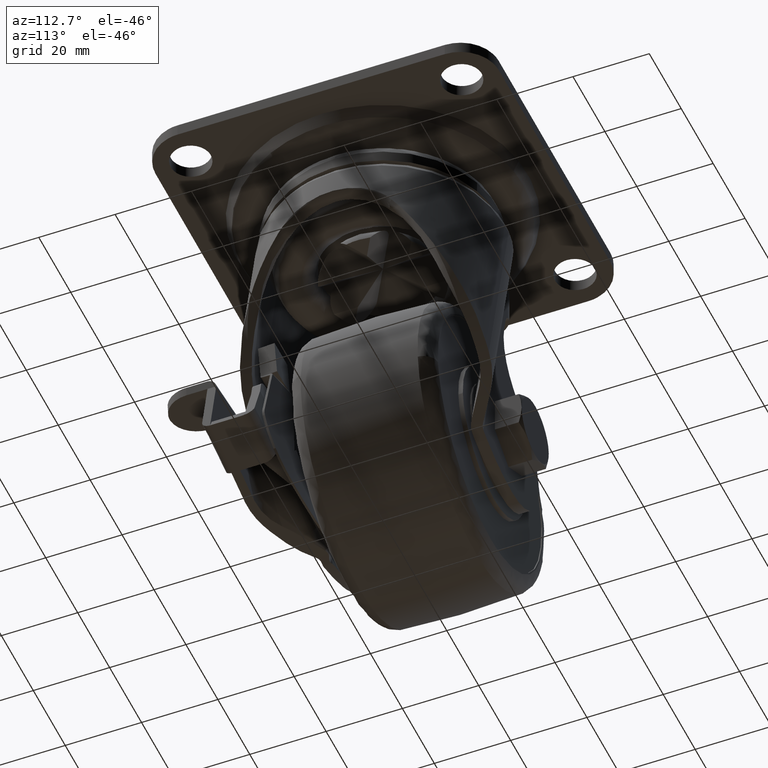
[diagram: clean part render]
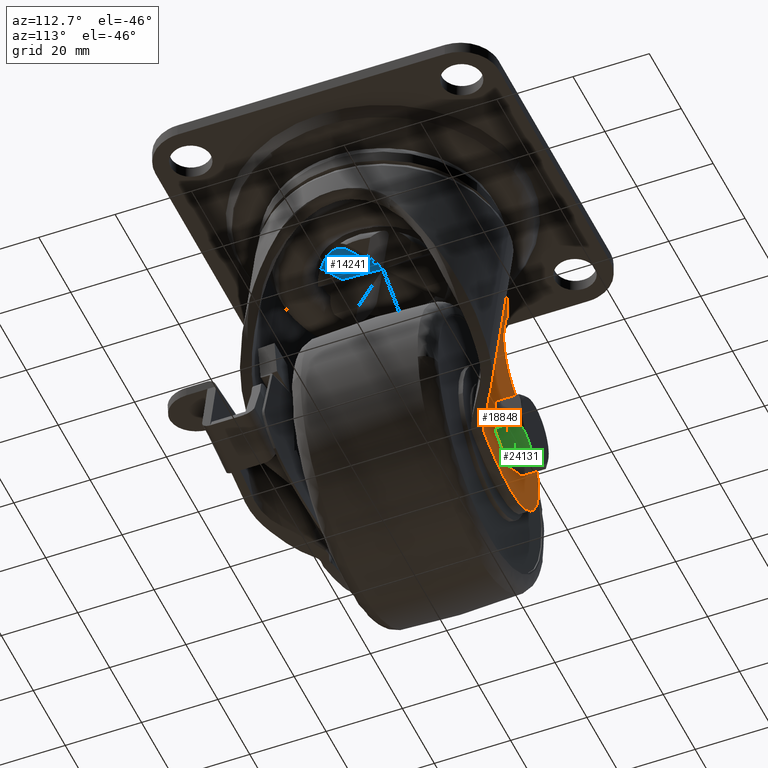
[diagram: same view with three faces highlighted in distinct colors, each labeled with its STEP entity id]
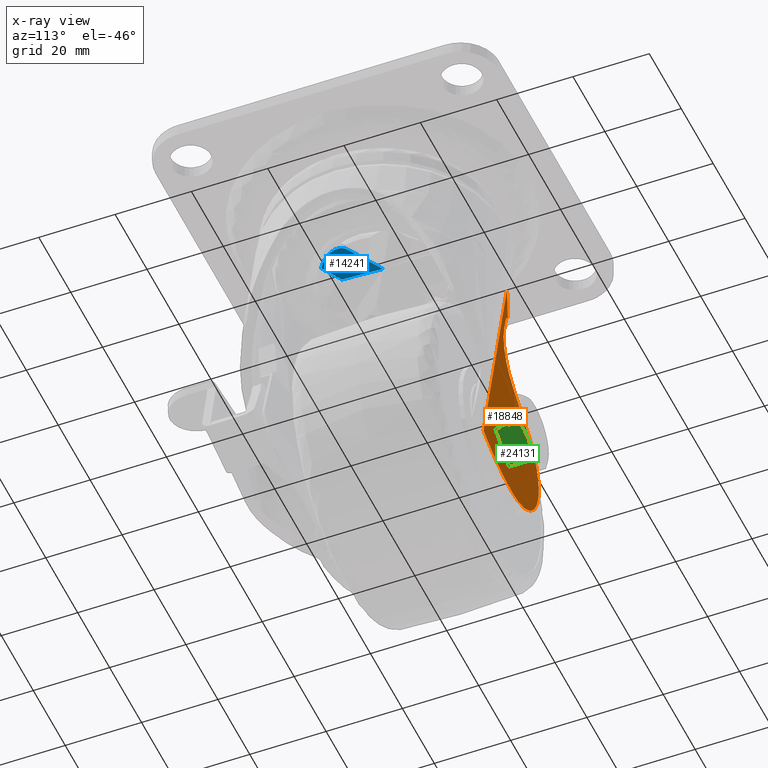
[diagram: x-ray of the same camera — body ghosted, the three highlighted faces saturated]
A machine part, auxiliary view with three faces highlighted in distinct colors.
The next image is the same camera in x-ray (body ghosted, the three faces saturated) — at least one of them is partly hidden behind the body in this view.
Their STEP definitions:

[orange] entity #18848 — the highlighted face is a freeform B-spline surface patch.
#15724=CARTESIAN_POINT('',(-26.994555841990479,23.699999999999999,-68.893080069755172));
#15725=VERTEX_POINT('',#15724);
#15731=CARTESIAN_POINT('',(-22.0,23.699999999999999,-63.490000000000002));
#15732=VERTEX_POINT('',#15731);
#15733=CARTESIAN_POINT('',(-26.994555841990476,23.699999999999999,-68.893080069755186));
#15734=CARTESIAN_POINT('',(-27.009999999999998,23.700000000000003,-68.696843436188132));
#15735=CARTESIAN_POINT('',(-27.010000000000002,23.699999999999999,-68.500000000000000));
#15736=CARTESIAN_POINT('',(-27.009999999999998,23.700000000000003,-63.489999999999988));
#15737=CARTESIAN_POINT('',(-22.0,23.699999999999999,-63.490000000000002));
#15745=(BOUNDED_CURVE()B_SPLINE_CURVE(2,(#15733,#15734,#15735,#15736,#15737),.UNSPECIFIED.,.F.,.U.)B_SPLINE_CURVE_WITH_KNOTS((3,2,3),(0.736331300627321,0.750000000000000,1.0),.UNSPECIFIED.)CURVE()GEOMETRIC_REPRESENTATION_ITEM()RATIONAL_B_SPLINE_CURVE((0.969723356160449,0.983986122574970,1.0,0.707106781186548,1.0))REPRESENTATION_ITEM(''));
#15746=EDGE_CURVE('',#15725,#15732,#15745,.T.);
#15748=CARTESIAN_POINT('',(-17.005444158009521,23.699999999999999,-68.106919930244828));
#15749=VERTEX_POINT('',#15748);
#15750=CARTESIAN_POINT('',(-22.0,23.699999999999999,-63.490000000000002));
#15751=CARTESIAN_POINT('',(-17.368803636939948,23.699999999999992,-63.490000000000002));
#15752=CARTESIAN_POINT('',(-17.005444158009514,23.700000000000003,-68.106919930244842));
#15760=(BOUNDED_CURVE()B_SPLINE_CURVE(2,(#15750,#15751,#15752),.UNSPECIFIED.,.F.,.U.)B_SPLINE_CURVE_WITH_KNOTS((3,3),(0.0,0.236331300627321),.UNSPECIFIED.)CURVE()GEOMETRIC_REPRESENTATION_ITEM()RATIONAL_B_SPLINE_CURVE((1.0,0.723120658611577,0.969723356160451))REPRESENTATION_ITEM(''));
#15761=EDGE_CURVE('',#15732,#15749,#15760,.T.);
#15807=CARTESIAN_POINT('',(-22.0,23.699999999999999,-73.510000000000005));
#15808=VERTEX_POINT('',#15807);
#15809=CARTESIAN_POINT('',(-17.005444158009510,23.699999999999996,-68.106919930244828));
#15810=CARTESIAN_POINT('',(-16.989999999999991,23.699999999999992,-68.303156563811868));
#15811=CARTESIAN_POINT('',(-16.989999999999998,23.699999999999999,-68.500000000000000));
#15812=CARTESIAN_POINT('',(-16.989999999999995,23.700000000000003,-73.510000000000019));
#15813=CARTESIAN_POINT('',(-22.0,23.699999999999999,-73.510000000000005));
#15821=(BOUNDED_CURVE()B_SPLINE_CURVE(2,(#15809,#15810,#15811,#15812,#15813),.UNSPECIFIED.,.F.,.U.)B_SPLINE_CURVE_WITH_KNOTS((3,2,3),(0.236331300627321,0.250000000000000,0.500000000000000),.UNSPECIFIED.)CURVE()GEOMETRIC_REPRESENTATION_ITEM()RATIONAL_B_SPLINE_CURVE((0.969723356160450,0.983986122574970,1.0,0.707106781186548,1.0))REPRESENTATION_ITEM(''));
#15822=EDGE_CURVE('',#15749,#15808,#15821,.T.);
#15824=CARTESIAN_POINT('',(-22.0,23.699999999999999,-73.510000000000005));
#15825=CARTESIAN_POINT('',(-26.631196363060038,23.699999999999992,-73.510000000000005));
#15826=CARTESIAN_POINT('',(-26.994555841990479,23.699999999999996,-68.893080069755172));
#15834=(BOUNDED_CURVE()B_SPLINE_CURVE(2,(#15824,#15825,#15826),.UNSPECIFIED.,.F.,.U.)B_SPLINE_CURVE_WITH_KNOTS((3,3),(0.500000000000000,0.736331300627321),.UNSPECIFIED.)CURVE()GEOMETRIC_REPRESENTATION_ITEM()RATIONAL_B_SPLINE_CURVE((1.0,0.723120658611577,0.969723356160450))REPRESENTATION_ITEM(''));
#15835=EDGE_CURVE('',#15808,#15725,#15834,.T.);
#16819=CARTESIAN_POINT('',(-21.129312220677701,23.699999999999999,-17.199999992003800));
#16820=VERTEX_POINT('',#16819);
#17837=CARTESIAN_POINT('',(-6.373385255919930,23.699999999999999,-80.573490822857892));
#17838=VERTEX_POINT('',#17837);
#17839=CARTESIAN_POINT('',(-21.129312220677701,23.699999999999999,-17.199999992003800));
#17840=CARTESIAN_POINT('',(-6.373385255919930,23.699999999999999,-80.573490822857892));
#17841=QUASI_UNIFORM_CURVE('',1,(#17839,#17840),.UNSPECIFIED.,.F.,.U.);
#17842=EDGE_CURVE('',#16820,#17838,#17841,.T.);
#18730=CARTESIAN_POINT('',(-42.729331505810748,23.699999999999999,-88.386609868989851));
#18731=CARTESIAN_POINT('',(-42.729331505810748,23.699999999999999,-13.813388304476231));
#18732=CARTESIAN_POINT('',(-4.643797730095058,23.699999999999999,-88.386609868989851));
#18733=CARTESIAN_POINT('',(-4.643797730095058,23.699999999999999,-13.813388304476231));
#18734=B_SPLINE_SURFACE_WITH_KNOTS('',1,1,((#18730,#18732),(#18731,#18733)),.UNSPECIFIED.,.F.,.F.,.U.,(2,2),(2,2),(0.0,74.573221564513616),(0.0,38.085533775715689),.UNSPECIFIED.);
#18735=CARTESIAN_POINT('',(-21.625893818488901,23.699999999999999,-26.875271100859649));
#18736=VERTEX_POINT('',#18735);
#18737=CARTESIAN_POINT('',(-21.625893818488901,23.699999999999999,-26.875271100859649));
#18738=CARTESIAN_POINT('',(-21.430400050356770,23.699999999999999,-22.018808032938669));
#18739=CARTESIAN_POINT('',(-21.129312092710009,23.699999999999999,-17.199999999999608));
#18740=B_SPLINE_CURVE_WITH_KNOTS('',2,(#18737,#18738,#18739),.UNSPECIFIED.,.F.,.U.,(3,3),(0.0,0.988594035061507),.UNSPECIFIED.);
#18741=EDGE_CURVE('',#18736,#16820,#18740,.T.);
#18742=ORIENTED_EDGE('',*,*,#18741,.T.);
#18743=ORIENTED_EDGE('',*,*,#17842,.T.);
#18744=CARTESIAN_POINT('',(-8.556445448834710,23.699999999999999,-81.597282375814402));
#18745=VERTEX_POINT('',#18744);
#18746=CARTESIAN_POINT('',(-6.373385255919916,23.699999999999999,-80.573490822857892));
#18747=CARTESIAN_POINT('',(-7.455709780851437,23.700000000000003,-81.105015904435433));
#18748=CARTESIAN_POINT('',(-8.556445438401772,23.699999999999999,-81.597282399142998));
#18756=(BOUNDED_CURVE()B_SPLINE_CURVE(2,(#18746,#18747,#18748),.UNSPECIFIED.,.F.,.U.)CURVE()GEOMETRIC_REPRESENTATION_ITEM()QUASI_UNIFORM_CURVE()RATIONAL_B_SPLINE_CURVE((1.0,0.999838339993762,1.0))REPRESENTATION_ITEM(''));
#18757=EDGE_CURVE('',#17838,#18745,#18756,.T.);
#18758=ORIENTED_EDGE('',*,*,#18757,.T.);
#18759=CARTESIAN_POINT('',(-24.500000000000000,23.699999999999999,-85.0));
#18760=VERTEX_POINT('',#18759);
#18761=CARTESIAN_POINT('',(-8.556445448834726,23.699999999999999,-81.597282375814345));
#18762=CARTESIAN_POINT('',(-16.165114008829914,23.700000000000003,-85.000000000000099));
#18763=CARTESIAN_POINT('',(-24.500000000000000,23.699999999999999,-85.000000000000099));
#18771=(BOUNDED_CURVE()B_SPLINE_CURVE(2,(#18761,#18762,#18763),.UNSPECIFIED.,.F.,.U.)CURVE()GEOMETRIC_REPRESENTATION_ITEM()QUASI_UNIFORM_CURVE()RATIONAL_B_SPLINE_CURVE((1.0,0.977974984905492,1.0))REPRESENTATION_ITEM(''));
#18772=EDGE_CURVE('',#18745,#18760,#18771,.T.);
#18773=ORIENTED_EDGE('',*,*,#18772,.T.);
#18774=CARTESIAN_POINT('',(-34.519720999999997,23.699999999999999,-55.390644999999999));
#18775=VERTEX_POINT('',#18774);
#18776=CARTESIAN_POINT('',(-24.500000000000000,23.699999999999999,-85.0));
#18777=CARTESIAN_POINT('',(-25.248630320091131,23.699999999999982,-85.000030968729561));
#18778=CARTESIAN_POINT('',(-26.745890456978579,23.700000000000049,-84.897907425491397));
#18779=CARTESIAN_POINT('',(-29.317697678885398,23.699999999999900,-84.365565351713599));
#18780=CARTESIAN_POINT('',(-32.119521305536011,23.700000000000159,-83.264970240999745));
#18781=CARTESIAN_POINT('',(-34.774907306755772,23.699999999999950,-81.530848250211463));
#18782=CARTESIAN_POINT('',(-36.829855749098307,23.700000000000092,-79.564943784480093));
#18783=CARTESIAN_POINT('',(-38.261299828876787,23.699999999999889,-77.689715615580624));
#18784=CARTESIAN_POINT('',(-39.407288283787182,23.699999999999800,-75.691723694910507));
#18785=CARTESIAN_POINT('',(-40.232436909199322,23.700000000001019,-73.653341771309854));
#18786=CARTESIAN_POINT('',(-40.788262394311658,23.699999999999310,-71.417399905633530));
#18787=CARTESIAN_POINT('',(-41.028716135065558,23.700000000000362,-69.287006052624605));
#18788=CARTESIAN_POINT('',(-40.979433484510132,23.699999999999729,-66.661938812644991));
#18789=CARTESIAN_POINT('',(-40.453978575151332,23.700000000000149,-63.915162266119921));
#18790=CARTESIAN_POINT('',(-39.363090645272237,23.699999999999790,-61.172982104364287));
#18791=CARTESIAN_POINT('',(-38.124165886164278,23.700000000000330,-59.101581923351709));
#18792=CARTESIAN_POINT('',(-36.550666766753700,23.699999999999481,-57.136304564226357));
#18793=CARTESIAN_POINT('',(-35.327021539971547,23.700000000001410,-56.007540372796377));
#18794=CARTESIAN_POINT('',(-34.519720999999997,23.699999999999999,-55.390644999999999));
#18795=B_SPLINE_CURVE_WITH_KNOTS('',3,(#18776,#18777,#18778,#18779,#18780,#18781,#18782,#18783,#18784,#18785,#18786,#18787,#18788,#18789,#18790,#18791,#18792,#18793,#18794),.UNSPECIFIED.,.F.,.U.,(4,1,1,1,1,1,1,1,1,1,1,1,1,1,1,1,4),(-5.032497E-009,2.245897374522528,4.491833501474893,7.860761526265485,11.229677232138661,13.956889916733489,16.363271272703180,18.288323840177199,20.855098567624420,22.940580513534758,25.186522912377239,27.272034620400110,30.801380362067832,33.528605067508479,36.095402678658729,38.020469589155667,41.068506366468839),.UNSPECIFIED.);
#18796=EDGE_CURVE('',#18760,#18775,#18795,.T.);
#18797=ORIENTED_EDGE('',*,*,#18796,.T.);
#18798=CARTESIAN_POINT('',(-24.835082551286551,23.699999999999999,-47.988498409012500));
#18799=VERTEX_POINT('',#18798);
#18800=CARTESIAN_POINT('',(-34.519720999999997,23.699999999999999,-55.390644999999999));
#18801=CARTESIAN_POINT('',(-24.835082551286551,23.699999999999999,-47.988498409012500));
#18802=QUASI_UNIFORM_CURVE('',1,(#18800,#18801),.UNSPECIFIED.,.F.,.U.);
#18803=EDGE_CURVE('',#18775,#18799,#18802,.T.);
#18804=ORIENTED_EDGE('',*,*,#18803,.T.);
#18805=CARTESIAN_POINT('',(-19.391783349113449,23.699999999999999,-32.432865219283201));
#18806=VERTEX_POINT('',#18805);
#18807=CARTESIAN_POINT('',(-19.391783349113400,23.699999999999999,-32.432865219283187));
#18808=CARTESIAN_POINT('',(-16.999997575248575,23.699999999999999,-41.999998800306564));
#18809=CARTESIAN_POINT('',(-24.835082551286561,23.699999999999999,-47.988498409012493));
#18817=(BOUNDED_CURVE()B_SPLINE_CURVE(2,(#18807,#18808,#18809),.UNSPECIFIED.,.F.,.U.)CURVE()GEOMETRIC_REPRESENTATION_ITEM()QUASI_UNIFORM_CURVE()RATIONAL_B_SPLINE_CURVE((1.0,0.835592118641501,1.0))REPRESENTATION_ITEM(''));
#18818=EDGE_CURVE('',#18806,#18799,#18817,.T.);
#18819=ORIENTED_EDGE('',*,*,#18818,.F.);
#18820=CARTESIAN_POINT('',(-20.242536352048049,23.699999999999999,-29.029856591809001));
#18821=VERTEX_POINT('',#18820);
#18822=CARTESIAN_POINT('',(-19.391783349113449,23.699999999999999,-32.432865219283201));
#18823=CARTESIAN_POINT('',(-20.242536352048049,23.699999999999999,-29.029856591809001));
#18824=QUASI_UNIFORM_CURVE('',1,(#18822,#18823),.UNSPECIFIED.,.F.,.U.);
#18825=EDGE_CURVE('',#18806,#18821,#18824,.T.);
#18826=ORIENTED_EDGE('',*,*,#18825,.T.);
#18827=CARTESIAN_POINT('',(-20.242536352048049,23.699999999999999,-29.029856591809001));
#18828=CARTESIAN_POINT('',(-20.570276761641907,23.699999999999999,-27.718896257172688));
#18829=CARTESIAN_POINT('',(-21.625893818488841,23.699999999999999,-26.875271100859571));
#18837=(BOUNDED_CURVE()B_SPLINE_CURVE(2,(#18827,#18828,#18829),.UNSPECIFIED.,.F.,.U.)CURVE()GEOMETRIC_REPRESENTATION_ITEM()QUASI_UNIFORM_CURVE()RATIONAL_B_SPLINE_CURVE((1.0,0.947398440155928,1.0))REPRESENTATION_ITEM(''));
#18838=EDGE_CURVE('',#18821,#18736,#18837,.T.);
#18839=ORIENTED_EDGE('',*,*,#18838,.T.);
#18840=EDGE_LOOP('',(#18742,#18743,#18758,#18773,#18797,#18804,#18819,#18826,#18839));
#18841=FACE_OUTER_BOUND('',#18840,.T.);
#18842=ORIENTED_EDGE('',*,*,#15835,.F.);
#18843=ORIENTED_EDGE('',*,*,#15822,.F.);
#18844=ORIENTED_EDGE('',*,*,#15761,.F.);
#18845=ORIENTED_EDGE('',*,*,#15746,.F.);
#18846=EDGE_LOOP('',(#18842,#18843,#18844,#18845));
#18847=FACE_BOUND('',#18846,.T.);
#18848=ADVANCED_FACE('',(#18841,#18847),#18734,.T.);

[blue] entity #14241 — the highlighted face is a freeform B-spline surface patch.
#13881=CARTESIAN_POINT('',(10.434329321615319,-11.797765534544180,-26.0));
#13882=VERTEX_POINT('',#13881);
#13883=CARTESIAN_POINT('',(4.999999999999890,-8.660254037844370,-26.0));
#13884=VERTEX_POINT('',#13883);
#13885=CARTESIAN_POINT('',(10.434329321615319,-11.797765534544180,-26.0));
#13886=CARTESIAN_POINT('',(4.999999999999890,-8.660254037844370,-26.0));
#13887=QUASI_UNIFORM_CURVE('',1,(#13885,#13886),.UNSPECIFIED.,.F.,.U.);
#13888=EDGE_CURVE('',#13882,#13884,#13887,.T.);
#14040=CARTESIAN_POINT('',(-2.881881E-013,-1.665335E-013,-21.0));
#14041=VERTEX_POINT('',#14040);
#14178=CARTESIAN_POINT('',(-0.582259350550407,0.604407940782953,-20.767697044307941));
#14179=CARTESIAN_POINT('',(-0.582259350550407,-9.532203139001791,-29.546259747684338));
#14180=CARTESIAN_POINT('',(12.239103970434099,-2.568056729823505,-17.104450381169510));
#14181=CARTESIAN_POINT('',(12.239103970434099,-12.704667809608249,-25.883013084545912));
#14182=B_SPLINE_SURFACE_WITH_KNOTS('',1,1,((#14178,#14180),(#14179,#14181)),.UNSPECIFIED.,.F.,.F.,.U.,(2,2),(2,2),(0.0,13.409476027046169),(0.0,13.706613936706900),.UNSPECIFIED.);
#14183=CARTESIAN_POINT('',(9.309773090682702,-5.375000000000000,-21.0));
#14184=VERTEX_POINT('',#14183);
#14185=CARTESIAN_POINT('',(9.309773090682702,-5.375000000000000,-21.0));
#14186=CARTESIAN_POINT('',(9.478319791243086,-5.472310482939736,-21.000000000000011));
#14187=CARTESIAN_POINT('',(9.640919957240936,-5.579259362001912,-21.011320363175258));
#14188=CARTESIAN_POINT('',(9.875794397473928,-5.754312095303161,-21.045483257099541));
#14189=CARTESIAN_POINT('',(9.952697596935483,-5.815245130296026,-21.059801213602260));
#14190=CARTESIAN_POINT('',(10.100776205457860,-5.939761732716232,-21.093596450229910));
#14191=CARTESIAN_POINT('',(10.172308353972850,-6.003594883921207,-21.113111506519520));
#14192=CARTESIAN_POINT('',(10.379704814886050,-6.199616950771348,-21.179173365657480));
#14193=CARTESIAN_POINT('',(10.508401778468190,-6.336307979722947,-21.233202787407951));
#14194=CARTESIAN_POINT('',(10.687722945730330,-6.549965319583010,-21.328574887800709));
#14195=CARTESIAN_POINT('',(10.745330110155001,-6.622825482990985,-21.362870058023489));
#14196=CARTESIAN_POINT('',(10.854509702963650,-6.769377195007980,-21.435197767193969));
#14197=CARTESIAN_POINT('',(10.906269688965841,-6.843270779231575,-21.473311495307200));
#14198=CARTESIAN_POINT('',(11.053490038412180,-7.066710889210013,-21.593206132049751));
#14199=CARTESIAN_POINT('',(11.140925489293860,-7.218009198373970,-21.680516585894619));
#14200=CARTESIAN_POINT('',(11.256978804930920,-7.448252858212232,-21.821886786556330));
#14201=CARTESIAN_POINT('',(11.293199309882469,-7.525697441412470,-21.870845510517359));
#14202=CARTESIAN_POINT('',(11.360370989448370,-7.681025335041265,-21.971777572533291));
#14203=CARTESIAN_POINT('',(11.391173042241350,-7.758536396086955,-22.023503094076741));
#14204=CARTESIAN_POINT('',(11.475659817098389,-7.990634646148619,-22.182262687375530));
#14205=CARTESIAN_POINT('',(11.521455099309261,-8.144788546597406,-22.292866240151071));
#14206=CARTESIAN_POINT('',(11.593407340490259,-8.452017809461998,-22.522958465987259));
#14207=CARTESIAN_POINT('',(11.619574148803681,-8.605263516667804,-22.642589737291772));
#14208=CARTESIAN_POINT('',(11.669292960256209,-9.062369612620232,-23.013595822885041));
#14209=CARTESIAN_POINT('',(11.663681075423510,-9.355828062019759,-23.270544237436521));
#14210=CARTESIAN_POINT('',(11.613915729681819,-9.710210245945063,-23.602330884235290));
#14211=CARTESIAN_POINT('',(11.601798236913099,-9.780456810885125,-23.669224940386421));
#14212=CARTESIAN_POINT('',(11.573280261949600,-9.919703542220091,-23.804075134598190));
#14213=CARTESIAN_POINT('',(11.556848778876910,-9.988814918433025,-23.872143083625449));
#14214=CARTESIAN_POINT('',(11.501365354309090,-10.193513493138621,-24.077158961722869));
#14215=CARTESIAN_POINT('',(11.456390517169140,-10.325680253792040,-24.214106152554610));
#14216=CARTESIAN_POINT('',(11.299022708191840,-10.710098879774080,-24.625706352831621));
#14217=CARTESIAN_POINT('',(11.164349102283101,-10.950356653987610,-24.901112491711590));
#14218=CARTESIAN_POINT('',(10.960705889557110,-11.231675558295640,-25.246563415770161));
#14219=CARTESIAN_POINT('',(10.918135811443760,-11.287056871665291,-25.315810079099819));
#14220=CARTESIAN_POINT('',(10.829776156583581,-11.395491790018109,-25.453897300480740));
#14221=CARTESIAN_POINT('',(10.784013348437529,-11.448523529734411,-25.522705538354959));
#14222=CARTESIAN_POINT('',(10.642066008637769,-11.604129024370909,-25.728437519578499));
#14223=CARTESIAN_POINT('',(10.541230278697959,-11.703218835194329,-25.864669677977730));
#14224=CARTESIAN_POINT('',(10.434329321615399,-11.797765534544251,-26.0));
#14225=B_SPLINE_CURVE_WITH_KNOTS('',3,(#14185,#14186,#14187,#14188,#14189,#14190,#14191,#14192,#14193,#14194,#14195,#14196,#14197,#14198,#14199,#14200,#14201,#14202,#14203,#14204,#14205,#14206,#14207,#14208,#14209,#14210,#14211,#14212,#14213,#14214,#14215,#14216,#14217,#14218,#14219,#14220,#14221,#14222,#14223,#14224),.UNSPECIFIED.,.F.,.U.,(4,2,2,2,2,2,2,2,2,2,2,2,2,2,2,2,2,2,2,4),(0.0,0.062499999999999,0.093749999999998,0.124999999999998,0.187499999999997,0.218749999999997,0.249999999999997,0.312499999999996,0.343749999999996,0.374999999999996,0.437499999999996,0.499999999999996,0.624999999999996,0.656249999999996,0.687499999999996,0.749999999999996,0.874999999999997,0.906249999999998,0.937499999999999,1.0),.UNSPECIFIED.);
#14226=EDGE_CURVE('',#14184,#13882,#14225,.T.);
#14227=ORIENTED_EDGE('',*,*,#14226,.T.);
#14228=ORIENTED_EDGE('',*,*,#13888,.T.);
#14229=CARTESIAN_POINT('',(-2.881881E-013,-1.665335E-013,-21.0));
#14230=CARTESIAN_POINT('',(4.999999999999890,-8.660254037844370,-26.0));
#14231=QUASI_UNIFORM_CURVE('',1,(#14229,#14230),.UNSPECIFIED.,.F.,.U.);
#14232=EDGE_CURVE('',#14041,#13884,#14231,.T.);
#14233=ORIENTED_EDGE('',*,*,#14232,.F.);
#14234=CARTESIAN_POINT('',(-2.881881E-013,-1.665335E-013,-21.0));
#14235=CARTESIAN_POINT('',(9.309773090682702,-5.375000000000000,-21.0));
#14236=QUASI_UNIFORM_CURVE('',1,(#14234,#14235),.UNSPECIFIED.,.F.,.U.);
#14237=EDGE_CURVE('',#14041,#14184,#14236,.T.);
#14238=ORIENTED_EDGE('',*,*,#14237,.T.);
#14239=EDGE_LOOP('',(#14227,#14228,#14233,#14238));
#14240=FACE_OUTER_BOUND('',#14239,.T.);
#14241=ADVANCED_FACE('',(#14240),#14182,.F.);

[green] entity #24131 — the highlighted face is a freeform B-spline surface patch.
#23737=CARTESIAN_POINT('',(-17.750000374268200,30.699999999999999,-75.861215716083890));
#23738=VERTEX_POINT('',#23737);
#23739=CARTESIAN_POINT('',(-22.000001732050499,29.940811000000000,-78.314954999999898));
#23740=VERTEX_POINT('',#23739);
#23741=CARTESIAN_POINT('',(-17.750000374268200,30.699999999999999,-75.861215716083890));
#23742=CARTESIAN_POINT('',(-17.927984106043390,30.699999221345621,-75.963974665502874));
#23743=CARTESIAN_POINT('',(-18.106830946066619,30.695664371815621,-76.067231930671880));
#23744=CARTESIAN_POINT('',(-18.465633969830840,30.678329275071182,-76.274386940866407));
#23745=CARTESIAN_POINT('',(-18.645761472822549,30.665218423659098,-76.378383597101589));
#23746=CARTESIAN_POINT('',(-19.184341486504302,30.613320609959199,-76.689332894725453));
#23747=CARTESIAN_POINT('',(-19.540987287785160,30.561939011455259,-76.895242432011642));
#23748=CARTESIAN_POINT('',(-20.604575110410490,30.363531057103199,-77.509305111660353));
#23749=CARTESIAN_POINT('',(-21.305192291687302,30.172414013857569,-77.913806606121597));
#23750=CARTESIAN_POINT('',(-22.000001732050539,29.940811000000188,-78.314954999999898));
#23751=B_SPLINE_CURVE_WITH_KNOTS('',3,(#23741,#23742,#23743,#23744,#23745,#23746,#23747,#23748,#23749,#23750),.UNSPECIFIED.,.F.,.U.,(4,2,2,2,4),(0.500936349002812,0.562499999999998,0.624999999999999,0.750000000000000,1.0),.UNSPECIFIED.);
#23752=EDGE_CURVE('',#23738,#23740,#23751,.T.);
#23931=CARTESIAN_POINT('',(-13.500000000000000,29.940811327837800,-73.407477000000100));
#23932=VERTEX_POINT('',#23931);
#23946=CARTESIAN_POINT('',(-13.500000000000000,29.940811327837800,-73.407477000000100));
#23947=CARTESIAN_POINT('',(-14.193944423940509,30.172125962906250,-73.808125976443193));
#23948=CARTESIAN_POINT('',(-14.892948309054860,30.362771152745651,-74.211696033985461));
#23949=CARTESIAN_POINT('',(-15.952387880775740,30.560850269228141,-74.823363719998412));
#23950=CARTESIAN_POINT('',(-16.307361065483700,30.612193401643339,-75.028307571712659));
#23951=CARTESIAN_POINT('',(-17.021441556505099,30.681648374360449,-75.440582111222795));
#23952=CARTESIAN_POINT('',(-17.380552435160752,30.699731499119039,-75.647914861511296));
#23953=CARTESIAN_POINT('',(-17.744586506146678,30.699999220590570,-75.858090018050120));
#23954=CARTESIAN_POINT('',(-17.747293340378210,30.700000208347589,-75.859652809430600));
#23955=CARTESIAN_POINT('',(-17.750000374270190,30.700000193560729,-75.861215716085084));
#23956=B_SPLINE_CURVE_WITH_KNOTS('',3,(#23946,#23947,#23948,#23949,#23950,#23951,#23952,#23953,#23954,#23955),.UNSPECIFIED.,.F.,.U.,(4,2,2,2,4),(0.0,0.249999999999998,0.374999999999997,0.499999999999997,0.500936349002812),.UNSPECIFIED.);
#23957=EDGE_CURVE('',#23932,#23738,#23956,.T.);
#24103=CARTESIAN_POINT('',(-22.424576802091789,23.350350013567351,-78.560083516588222));
#24104=CARTESIAN_POINT('',(-13.075424701970920,23.350350013567351,-73.162348351782938));
#24105=CARTESIAN_POINT('',(-22.424576802091789,31.049650174187281,-78.560083516588222));
#24106=CARTESIAN_POINT('',(-13.075424701970920,31.049650174187281,-73.162348351782938));
#24107=B_SPLINE_SURFACE_WITH_KNOTS('',1,1,((#24103,#24105),(#24104,#24106)),.UNSPECIFIED.,.F.,.F.,.U.,(2,2),(2,2),(0.0,10.795470804951950),(0.0,7.699300160619926),.UNSPECIFIED.);
#24108=CARTESIAN_POINT('',(-13.500000000000000,23.699999999999999,-73.407478135664505));
#24109=VERTEX_POINT('',#24108);
#24110=CARTESIAN_POINT('',(-13.500000000000000,29.940811327837800,-73.407477000000100));
#24111=CARTESIAN_POINT('',(-13.500000000000000,23.699999999999999,-73.407478135664505));
#24112=QUASI_UNIFORM_CURVE('',1,(#24110,#24111),.UNSPECIFIED.,.F.,.U.);
#24113=EDGE_CURVE('',#23932,#24109,#24112,.T.);
#24114=ORIENTED_EDGE('',*,*,#24113,.T.);
#24115=CARTESIAN_POINT('',(-22.0,23.699999999999999,-78.314954000000100));
#24116=VERTEX_POINT('',#24115);
#24117=CARTESIAN_POINT('',(-13.500000000000000,23.699999999999999,-73.407478135664505));
#24118=CARTESIAN_POINT('',(-22.0,23.699999999999999,-78.314954000000100));
#24119=QUASI_UNIFORM_CURVE('',1,(#24117,#24118),.UNSPECIFIED.,.F.,.U.);
#24120=EDGE_CURVE('',#24109,#24116,#24119,.T.);
#24121=ORIENTED_EDGE('',*,*,#24120,.T.);
#24122=CARTESIAN_POINT('',(-22.000001732050499,29.940811000000000,-78.314954999999898));
#24123=CARTESIAN_POINT('',(-22.0,23.699999999999999,-78.314954000000100));
#24124=QUASI_UNIFORM_CURVE('',1,(#24122,#24123),.UNSPECIFIED.,.F.,.U.);
#24125=EDGE_CURVE('',#23740,#24116,#24124,.T.);
#24126=ORIENTED_EDGE('',*,*,#24125,.F.);
#24127=ORIENTED_EDGE('',*,*,#23752,.F.);
#24128=ORIENTED_EDGE('',*,*,#23957,.F.);
#24129=EDGE_LOOP('',(#24114,#24121,#24126,#24127,#24128));
#24130=FACE_OUTER_BOUND('',#24129,.T.);
#24131=ADVANCED_FACE('',(#24130),#24107,.F.);